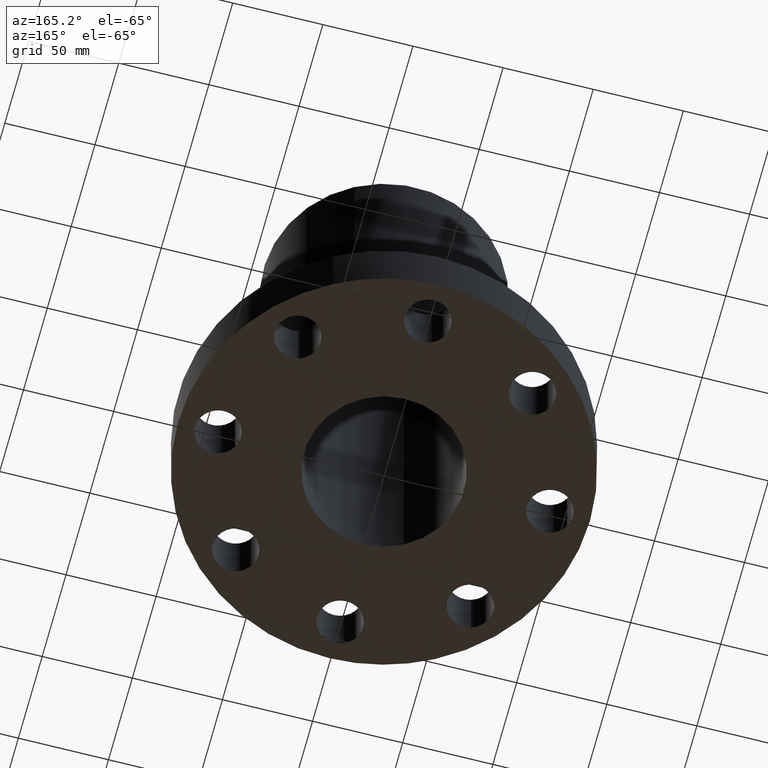
[diagram: clean part render]
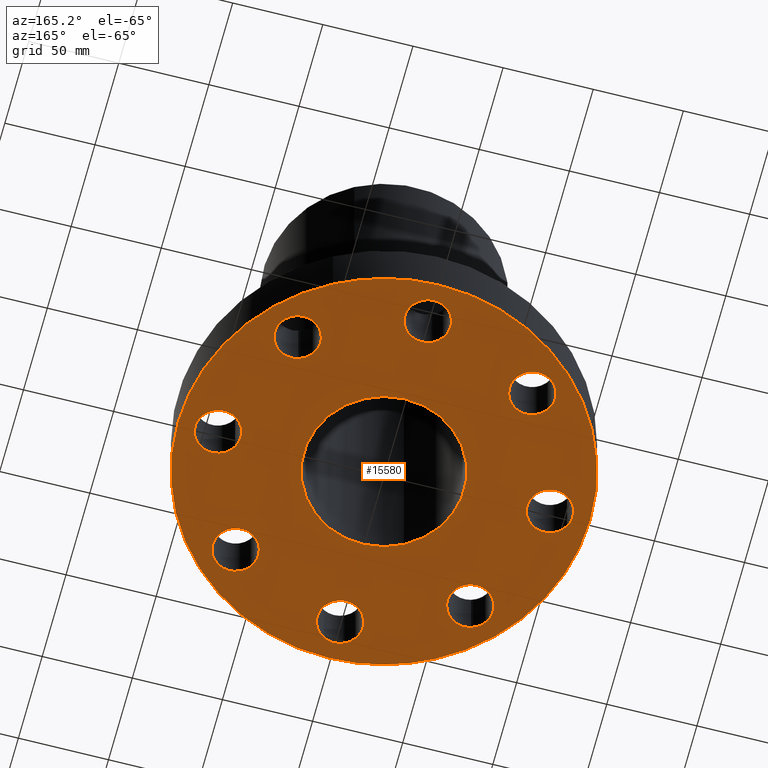
[diagram: same view with one face highlighted and labeled with its STEP entity id]
A machine part, auxiliary view. The second image highlights one B-rep face of the part: STEP entity #15580.
In plain terms, the highlighted planar face has unit normal (0, 0, 1).
Its self-contained STEP definition (entity closure, byte-faithful):
#65=AXIS2_PLACEMENT_3D('Circle Axis2P3D',#63,#64,$) ;
#82=AXIS2_PLACEMENT_3D('Circle Axis2P3D',#80,#81,$) ;
#289=AXIS2_PLACEMENT_3D('Circle Axis2P3D',#287,#288,$) ;
#298=AXIS2_PLACEMENT_3D('Circle Axis2P3D',#296,#297,$) ;
#305=AXIS2_PLACEMENT_3D('Circle Axis2P3D',#303,#304,$) ;
#331=AXIS2_PLACEMENT_3D('Circle Axis2P3D',#329,#330,$) ;
#338=AXIS2_PLACEMENT_3D('Circle Axis2P3D',#336,#337,$) ;
#345=AXIS2_PLACEMENT_3D('Circle Axis2P3D',#343,#344,$) ;
#421=AXIS2_PLACEMENT_3D('Circle Axis2P3D',#419,#420,$) ;
#433=AXIS2_PLACEMENT_3D('Circle Axis2P3D',#431,#432,$) ;
#464=AXIS2_PLACEMENT_3D('Circle Axis2P3D',#462,#463,$) ;
#476=AXIS2_PLACEMENT_3D('Circle Axis2P3D',#474,#475,$) ;
#507=AXIS2_PLACEMENT_3D('Circle Axis2P3D',#505,#506,$) ;
#519=AXIS2_PLACEMENT_3D('Circle Axis2P3D',#517,#518,$) ;
#550=AXIS2_PLACEMENT_3D('Circle Axis2P3D',#548,#549,$) ;
#562=AXIS2_PLACEMENT_3D('Circle Axis2P3D',#560,#561,$) ;
#593=AXIS2_PLACEMENT_3D('Circle Axis2P3D',#591,#592,$) ;
#605=AXIS2_PLACEMENT_3D('Circle Axis2P3D',#603,#604,$) ;
#636=AXIS2_PLACEMENT_3D('Circle Axis2P3D',#634,#635,$) ;
#648=AXIS2_PLACEMENT_3D('Circle Axis2P3D',#646,#647,$) ;
#679=AXIS2_PLACEMENT_3D('Circle Axis2P3D',#677,#678,$) ;
#691=AXIS2_PLACEMENT_3D('Circle Axis2P3D',#689,#690,$) ;
#973=AXIS2_PLACEMENT_3D('Circle Axis2P3D',#971,#972,$) ;
#999=AXIS2_PLACEMENT_3D('Circle Axis2P3D',#997,#998,$) ;
#15534=AXIS2_PLACEMENT_3D('Plane Axis2P3D',#15531,#15532,#15533) ;
#46=CARTESIAN_POINT('Vertex',(3.18620871907,-0.239712769303,2.2401153548E-016)) ;
#60=CARTESIAN_POINT('Vertex',(4.06379128096,0.239712769303,2.2401153548E-016)) ;
#63=CARTESIAN_POINT('Axis2P3D Location',(3.62500000001,0.,0.)) ;
#80=CARTESIAN_POINT('Axis2P3D Location',(3.62500000001,0.,0.)) ;
#287=CARTESIAN_POINT('Axis2P3D Location',(0.,0.,5.59482469102E-016)) ;
#291=CARTESIAN_POINT('Vertex',(-1.72285591452E-015,4.50000000002,0.)) ;
#293=CARTESIAN_POINT('Vertex',(2.15741492373,3.94912152852,5.59482469102E-016)) ;
#296=CARTESIAN_POINT('Axis2P3D Location',(0.,0.,5.59482469102E-016)) ;
#300=CARTESIAN_POINT('Vertex',(-4.50000000002,-2.54949250395E-015,0.)) ;
#303=CARTESIAN_POINT('Axis2P3D Location',(0.,0.,5.59482469102E-016)) ;
#307=CARTESIAN_POINT('Vertex',(-2.15741492373,-3.94912152852,5.59482469102E-016)) ;
#329=CARTESIAN_POINT('Axis2P3D Location',(0.,0.,5.59482469102E-016)) ;
#333=CARTESIAN_POINT('Vertex',(5.27154914064E-015,-4.50000000002,0.)) ;
#336=CARTESIAN_POINT('Axis2P3D Location',(0.,0.,5.59482469102E-016)) ;
#340=CARTESIAN_POINT('Vertex',(4.50000000002,5.03534222192E-015,0.)) ;
#343=CARTESIAN_POINT('Axis2P3D Location',(0.,0.,5.59482469102E-016)) ;
#409=CARTESIAN_POINT('Vertex',(2.08348726682,-2.42249231624,2.2401153548E-016)) ;
#416=CARTESIAN_POINT('Vertex',(3.04303689681,-2.70403184738,2.2401153548E-016)) ;
#419=CARTESIAN_POINT('Axis2P3D Location',(2.56326208181,-2.56326208181,0.)) ;
#431=CARTESIAN_POINT('Axis2P3D Location',(2.56326208181,-2.56326208181,0.)) ;
#452=CARTESIAN_POINT('Vertex',(-0.239712769303,-3.18620871907,2.2401153548E-016)) ;
#459=CARTESIAN_POINT('Vertex',(0.239712769303,-4.06379128096,2.2401153548E-016)) ;
#462=CARTESIAN_POINT('Axis2P3D Location',(-3.37515236756E-016,-3.62500000001,0.)) ;
#474=CARTESIAN_POINT('Axis2P3D Location',(-3.37515236756E-016,-3.62500000001,0.)) ;
#495=CARTESIAN_POINT('Vertex',(-2.42249231624,-2.08348726682,2.2401153548E-016)) ;
#502=CARTESIAN_POINT('Vertex',(-2.70403184738,-3.04303689681,2.2401153548E-016)) ;
#505=CARTESIAN_POINT('Axis2P3D Location',(-2.56326208181,-2.56326208181,0.)) ;
#517=CARTESIAN_POINT('Axis2P3D Location',(-2.56326208181,-2.56326208181,0.)) ;
#538=CARTESIAN_POINT('Vertex',(-3.18620871907,0.239712769303,2.2401153548E-016)) ;
#545=CARTESIAN_POINT('Vertex',(-4.06379128096,-0.239712769303,2.2401153548E-016)) ;
#548=CARTESIAN_POINT('Axis2P3D Location',(-3.62500000001,-4.43934464693E-016,0.)) ;
#560=CARTESIAN_POINT('Axis2P3D Location',(-3.62500000001,-4.43934464693E-016,0.)) ;
#581=CARTESIAN_POINT('Vertex',(-2.08348726682,2.42249231624,2.2401153548E-016)) ;
#588=CARTESIAN_POINT('Vertex',(-3.04303689681,2.70403184738,2.2401153548E-016)) ;
#591=CARTESIAN_POINT('Axis2P3D Location',(-2.56326208181,2.56326208181,0.)) ;
#603=CARTESIAN_POINT('Axis2P3D Location',(-2.56326208181,2.56326208181,0.)) ;
#624=CARTESIAN_POINT('Vertex',(0.239712769303,3.18620871907,2.2401153548E-016)) ;
#631=CARTESIAN_POINT('Vertex',(-0.239712769303,4.06379128096,2.2401153548E-016)) ;
#634=CARTESIAN_POINT('Axis2P3D Location',(-6.65901697039E-016,3.62500000001,0.)) ;
#646=CARTESIAN_POINT('Axis2P3D Location',(-6.65901697039E-016,3.62500000001,0.)) ;
#667=CARTESIAN_POINT('Vertex',(2.42249231624,2.08348726682,2.2401153548E-016)) ;
#674=CARTESIAN_POINT('Vertex',(2.70403184738,3.04303689681,2.2401153548E-016)) ;
#677=CARTESIAN_POINT('Axis2P3D Location',(2.56326208181,2.56326208181,0.)) ;
#689=CARTESIAN_POINT('Axis2P3D Location',(2.56326208181,2.56326208181,0.)) ;
#971=CARTESIAN_POINT('Axis2P3D Location',(0.,0.,0.)) ;
#975=CARTESIAN_POINT('Vertex',(-0.838994692561,-1.53576948331,0.)) ;
#977=CARTESIAN_POINT('Vertex',(0.838994692561,1.53576948331,0.)) ;
#997=CARTESIAN_POINT('Axis2P3D Location',(0.,0.,0.)) ;
#15531=CARTESIAN_POINT('Axis2P3D Location',(0.,0.,0.)) ;
#64=DIRECTION('Axis2P3D Direction',(0.,-0.,0.0393700787402)) ;
#81=DIRECTION('Axis2P3D Direction',(0.,-0.,0.0393700787402)) ;
#288=DIRECTION('Axis2P3D Direction',(0.,0.,-0.0393700787402)) ;
#297=DIRECTION('Axis2P3D Direction',(0.,0.,-0.0393700787402)) ;
#304=DIRECTION('Axis2P3D Direction',(0.,0.,-0.0393700787402)) ;
#330=DIRECTION('Axis2P3D Direction',(0.,0.,-0.0393700787402)) ;
#337=DIRECTION('Axis2P3D Direction',(0.,0.,-0.0393700787402)) ;
#344=DIRECTION('Axis2P3D Direction',(0.,0.,-0.0393700787402)) ;
#420=DIRECTION('Axis2P3D Direction',(-0.,0.,0.0393700787402)) ;
#432=DIRECTION('Axis2P3D Direction',(-0.,0.,0.0393700787402)) ;
#463=DIRECTION('Axis2P3D Direction',(-0.,0.,0.0393700787402)) ;
#475=DIRECTION('Axis2P3D Direction',(-0.,0.,0.0393700787402)) ;
#506=DIRECTION('Axis2P3D Direction',(0.,0.,0.0393700787402)) ;
#518=DIRECTION('Axis2P3D Direction',(0.,0.,0.0393700787402)) ;
#549=DIRECTION('Axis2P3D Direction',(0.,0.,0.0393700787402)) ;
#561=DIRECTION('Axis2P3D Direction',(0.,0.,0.0393700787402)) ;
#592=DIRECTION('Axis2P3D Direction',(0.,0.,0.0393700787402)) ;
#604=DIRECTION('Axis2P3D Direction',(0.,0.,0.0393700787402)) ;
#635=DIRECTION('Axis2P3D Direction',(0.,0.,0.0393700787402)) ;
#647=DIRECTION('Axis2P3D Direction',(0.,0.,0.0393700787402)) ;
#678=DIRECTION('Axis2P3D Direction',(0.,-0.,0.0393700787402)) ;
#690=DIRECTION('Axis2P3D Direction',(0.,-0.,0.0393700787402)) ;
#972=DIRECTION('Axis2P3D Direction',(0.,0.,-0.0393700787402)) ;
#998=DIRECTION('Axis2P3D Direction',(0.,0.,-0.0393700787402)) ;
#15532=DIRECTION('Axis2P3D Direction',(0.,0.,0.0393700787402)) ;
#15533=DIRECTION('Axis2P3D XDirection',(0.0393700787402,0.,0.)) ;
#15537=ORIENTED_EDGE('',*,*,#335,.T.) ;
#15538=ORIENTED_EDGE('',*,*,#309,.T.) ;
#15539=ORIENTED_EDGE('',*,*,#302,.T.) ;
#15540=ORIENTED_EDGE('',*,*,#295,.T.) ;
#15541=ORIENTED_EDGE('',*,*,#347,.T.) ;
#15542=ORIENTED_EDGE('',*,*,#342,.T.) ;
#15545=ORIENTED_EDGE('',*,*,#681,.F.) ;
#15546=ORIENTED_EDGE('',*,*,#693,.F.) ;
#15549=ORIENTED_EDGE('',*,*,#638,.F.) ;
#15550=ORIENTED_EDGE('',*,*,#650,.F.) ;
#15553=ORIENTED_EDGE('',*,*,#595,.F.) ;
#15554=ORIENTED_EDGE('',*,*,#607,.F.) ;
#15557=ORIENTED_EDGE('',*,*,#552,.F.) ;
#15558=ORIENTED_EDGE('',*,*,#564,.F.) ;
#15561=ORIENTED_EDGE('',*,*,#509,.F.) ;
#15562=ORIENTED_EDGE('',*,*,#521,.F.) ;
#15565=ORIENTED_EDGE('',*,*,#466,.F.) ;
#15566=ORIENTED_EDGE('',*,*,#478,.F.) ;
#15569=ORIENTED_EDGE('',*,*,#423,.F.) ;
#15570=ORIENTED_EDGE('',*,*,#435,.F.) ;
#15573=ORIENTED_EDGE('',*,*,#84,.F.) ;
#15574=ORIENTED_EDGE('',*,*,#67,.F.) ;
#15577=ORIENTED_EDGE('',*,*,#1001,.T.) ;
#15578=ORIENTED_EDGE('',*,*,#979,.T.) ;
#15547=FACE_BOUND('',#15544,.T.) ;
#15551=FACE_BOUND('',#15548,.T.) ;
#15555=FACE_BOUND('',#15552,.T.) ;
#15559=FACE_BOUND('',#15556,.T.) ;
#15563=FACE_BOUND('',#15560,.T.) ;
#15567=FACE_BOUND('',#15564,.T.) ;
#15571=FACE_BOUND('',#15568,.T.) ;
#15575=FACE_BOUND('',#15572,.T.) ;
#15579=FACE_BOUND('',#15576,.T.) ;
#15580=ADVANCED_FACE('PartBody',(#15543,#15547,#15551,#15555,#15559,#15563,#15567,#15571,#15575,#15579),#15535,.F.) ;
#66=CIRCLE('generated circle',#65,0.500000000002) ;
#83=CIRCLE('generated circle',#82,0.500000000002) ;
#290=CIRCLE('generated circle',#289,4.50000000002) ;
#299=CIRCLE('generated circle',#298,4.50000000002) ;
#306=CIRCLE('generated circle',#305,4.50000000002) ;
#332=CIRCLE('generated circle',#331,4.50000000002) ;
#339=CIRCLE('generated circle',#338,4.50000000002) ;
#346=CIRCLE('generated circle',#345,4.50000000002) ;
#422=CIRCLE('generated circle',#421,0.500000000002) ;
#434=CIRCLE('generated circle',#433,0.500000000002) ;
#465=CIRCLE('generated circle',#464,0.500000000002) ;
#477=CIRCLE('generated circle',#476,0.500000000002) ;
#508=CIRCLE('generated circle',#507,0.500000000002) ;
#520=CIRCLE('generated circle',#519,0.500000000002) ;
#551=CIRCLE('generated circle',#550,0.500000000002) ;
#563=CIRCLE('generated circle',#562,0.500000000002) ;
#594=CIRCLE('generated circle',#593,0.500000000002) ;
#606=CIRCLE('generated circle',#605,0.500000000002) ;
#637=CIRCLE('generated circle',#636,0.500000000002) ;
#649=CIRCLE('generated circle',#648,0.500000000002) ;
#680=CIRCLE('generated circle',#679,0.500000000002) ;
#692=CIRCLE('generated circle',#691,0.500000000002) ;
#974=CIRCLE('generated circle',#973,1.75000000001) ;
#1000=CIRCLE('generated circle',#999,1.75000000001) ;
#67=EDGE_CURVE('',#61,#47,#66,.F.) ;
#84=EDGE_CURVE('',#47,#61,#83,.F.) ;
#295=EDGE_CURVE('',#292,#294,#290,.T.) ;
#302=EDGE_CURVE('',#301,#292,#299,.T.) ;
#309=EDGE_CURVE('',#308,#301,#306,.T.) ;
#335=EDGE_CURVE('',#334,#308,#332,.T.) ;
#342=EDGE_CURVE('',#341,#334,#339,.T.) ;
#347=EDGE_CURVE('',#294,#341,#346,.T.) ;
#423=EDGE_CURVE('',#417,#410,#422,.F.) ;
#435=EDGE_CURVE('',#410,#417,#434,.F.) ;
#466=EDGE_CURVE('',#460,#453,#465,.F.) ;
#478=EDGE_CURVE('',#453,#460,#477,.F.) ;
#509=EDGE_CURVE('',#503,#496,#508,.F.) ;
#521=EDGE_CURVE('',#496,#503,#520,.F.) ;
#552=EDGE_CURVE('',#546,#539,#551,.F.) ;
#564=EDGE_CURVE('',#539,#546,#563,.F.) ;
#595=EDGE_CURVE('',#589,#582,#594,.F.) ;
#607=EDGE_CURVE('',#582,#589,#606,.F.) ;
#638=EDGE_CURVE('',#632,#625,#637,.F.) ;
#650=EDGE_CURVE('',#625,#632,#649,.F.) ;
#681=EDGE_CURVE('',#675,#668,#680,.F.) ;
#693=EDGE_CURVE('',#668,#675,#692,.F.) ;
#979=EDGE_CURVE('',#976,#978,#974,.F.) ;
#1001=EDGE_CURVE('',#978,#976,#1000,.F.) ;
#15536=EDGE_LOOP('',(#15537,#15538,#15539,#15540,#15541,#15542)) ;
#15544=EDGE_LOOP('',(#15545,#15546)) ;
#15548=EDGE_LOOP('',(#15549,#15550)) ;
#15552=EDGE_LOOP('',(#15553,#15554)) ;
#15556=EDGE_LOOP('',(#15557,#15558)) ;
#15560=EDGE_LOOP('',(#15561,#15562)) ;
#15564=EDGE_LOOP('',(#15565,#15566)) ;
#15568=EDGE_LOOP('',(#15569,#15570)) ;
#15572=EDGE_LOOP('',(#15573,#15574)) ;
#15576=EDGE_LOOP('',(#15577,#15578)) ;
#15543=FACE_OUTER_BOUND('',#15536,.T.) ;
#15535=PLANE('',#15534) ;
#47=VERTEX_POINT('',#46) ;
#61=VERTEX_POINT('',#60) ;
#292=VERTEX_POINT('',#291) ;
#294=VERTEX_POINT('',#293) ;
#301=VERTEX_POINT('',#300) ;
#308=VERTEX_POINT('',#307) ;
#334=VERTEX_POINT('',#333) ;
#341=VERTEX_POINT('',#340) ;
#410=VERTEX_POINT('',#409) ;
#417=VERTEX_POINT('',#416) ;
#453=VERTEX_POINT('',#452) ;
#460=VERTEX_POINT('',#459) ;
#496=VERTEX_POINT('',#495) ;
#503=VERTEX_POINT('',#502) ;
#539=VERTEX_POINT('',#538) ;
#546=VERTEX_POINT('',#545) ;
#582=VERTEX_POINT('',#581) ;
#589=VERTEX_POINT('',#588) ;
#625=VERTEX_POINT('',#624) ;
#632=VERTEX_POINT('',#631) ;
#668=VERTEX_POINT('',#667) ;
#675=VERTEX_POINT('',#674) ;
#976=VERTEX_POINT('',#975) ;
#978=VERTEX_POINT('',#977) ;